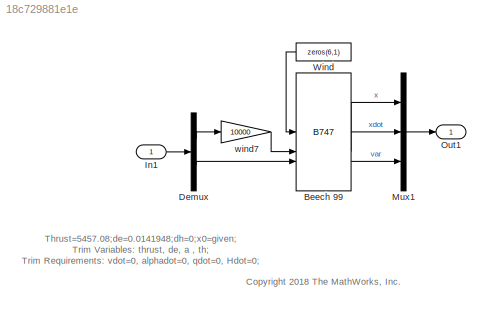
MODEL mdl_18c729881e1e
KIND model
CONFIG AbsTol = auto
CONFIG EnableMultiTasking = on
CONFIG FixedStep = auto
CONFIG MaxStep = auto
CONFIG MinStep = auto
CONFIG RelTol = 1e-3
CONFIG SampleTimeConstraint = Unconstrained
CONFIG SolverName = ode45
CONFIG StartTime = 0.0
CONFIG StopTime = 10.0
BLOCK [Reference]  Beech 99   REF=airlib/B747  (lib defined in mdl_00852699f85c, mdl_b3a2112ccc5d, +1 more)
  SourceBlock = airlib/B747
  SourceProductName = Aircraft Library
  SourceType = General Nonlinear Aircraft Model
BLOCK [Demux] Demux
  DisplayOption = none
  Outputs = [6 4]
BLOCK [Inport] In1
BLOCK [Mux] Mux1
  Inputs = [12 12 12]
BLOCK [Outport] Out1
BLOCK [Constant] Wind
  NameLocation = top
  Value = zeros(6,1)
BLOCK [Gain] wind7
  Gain = 10000
  NameLocation = top
  OutDataTypeStr = Inherit: Same as input
  ParamDataTypeStr = Inherit: Same as input
  SaturateOnIntegerOverflow = on
ANNOTATION (root): <copyright redacted>
ANNOTATION (root): Thrust=5457.08;de=0.0141948;dh=0;x0=given; Trim Variables: thrust, de, a , th; Trim Requirements: vdot=0, alphadot=0, qdot=0, Hdot=0;
LINE  Beech 99 :1 -> Mux1:1
LINE  Beech 99 :2 -> Mux1:2
LINE  Beech 99 :3 -> Mux1:3
LINE Demux:1 -> wind7:1
LINE Demux:2 ->  Beech 99 :3
LINE In1:1 -> Demux:1
LINE Mux1:1 -> Out1:1
LINE Wind:1 ->  Beech 99 :1
LINE wind7:1 ->  Beech 99 :2
